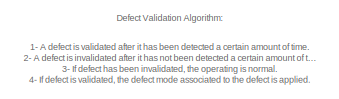
[diagram: root canvas - part 1/2, top left region]
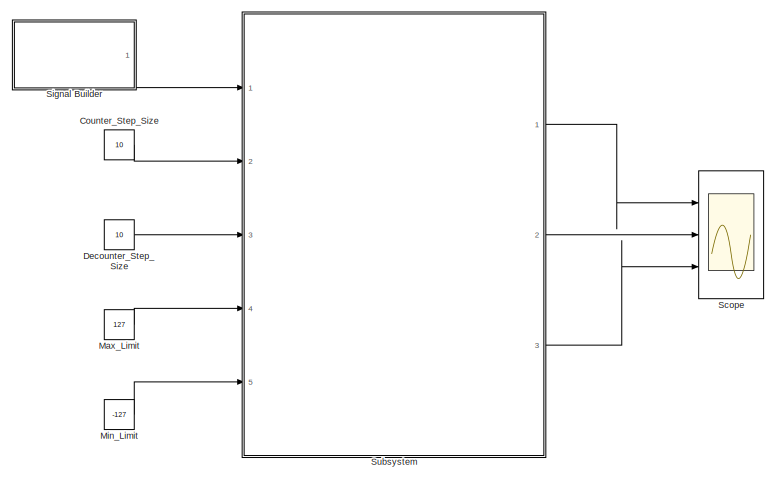
[diagram: root canvas - part 2/2, bottom right region]
MODEL slx_62a471bb2615
KIND model
CONFIG AbsTol = auto
CONFIG EnableMultiTasking = off
CONFIG FixedStep = auto
CONFIG MaxStep = auto
CONFIG MinStep = auto
CONFIG RelTol = 1e-3
CONFIG SampleTimeConstraint = Unconstrained
CONFIG SolverName = VariableStepAuto
CONFIG StartTime = 0.0
CONFIG StopTime = 10.0
BLOCK [Constant] Counter_Step_Size
  Value = 10
BLOCK [Constant] Decounter_Step_Size
  Value = 10
BLOCK [Constant] Max_Limit
  Value = 127
BLOCK [Constant] Min_Limit
  Value = -127
BLOCK [Scope] Scope
  Floating = off
  NumInputPorts = 3
  Ports = [3]
  ScopeSpecificationString = Simulink.scopes.TimeScopeBlockCfg('CurrentConfiguration', extmgr.ConfigurationSet(extmgr.Configuration('Core','General UI',true),extmgr.Configuration('Core','Source UI',true),extmgr.Configuration('Sources','WiredSimulink',true),extmgr.Configuration('Visuals','Time Domain',true,'SerializedDisplays',{struct('MinYLimReal','-0.125','MaxYLimReal','1.125','YLabelReal','','MinYLimMag','0.00000','MaxYLimM...<+2635ch>
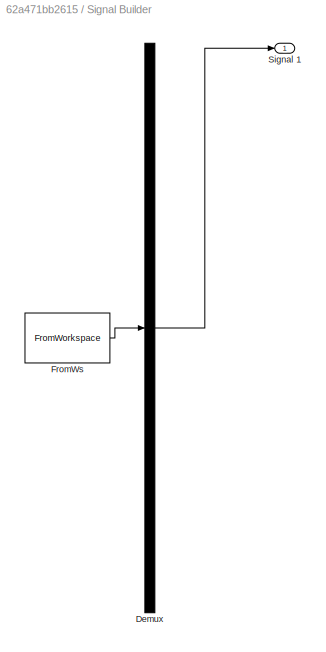
BLOCK [SubSystem] Signal Builder
  ClipboardFcn = sigbuilder_block('clipboard');
  CloseFcn = sigbuilder_block('close');
  ContinueFcn = sigbuilder_block('continue');
  CopyFcn = sigbuilder_block('copy');
  DeleteFcn = sigbuilder_block('delete');
  LoadFcn = sigbuilder_block('load');
  MaskHideContents = on
  ModelCloseFcn = sigbuilder_block('modelClose');
  NameChangeFcn = sigbuilder_block('namechange');
  OpenFcn = sigbuilder_block('open',[5.4 30 1141.2 522.6 ]);
  PauseFcn = sigbuilder_block('pause');
  Ports = [0, 1]
  PreSaveFcn = sigbuilder_block('preSave');
  RequestExecContextInheritance = off
  StartFcn = sigbuilder_block('start');
  StopFcn = sigbuilder_block('stop');
  Tag = STV Subsys
BLOCK [Demux] Signal Builder/Demux
  DisplayOption = none
  Outputs = 1
  Ports = [1, 1]
  Tag = STV Demux
BLOCK [FromWorkspace] Signal Builder/FromWs
  Tag = STV FromWs
  VariableName = tuvar
BLOCK [Outport] Signal Builder/Signal 1
  Tag = STV Outport
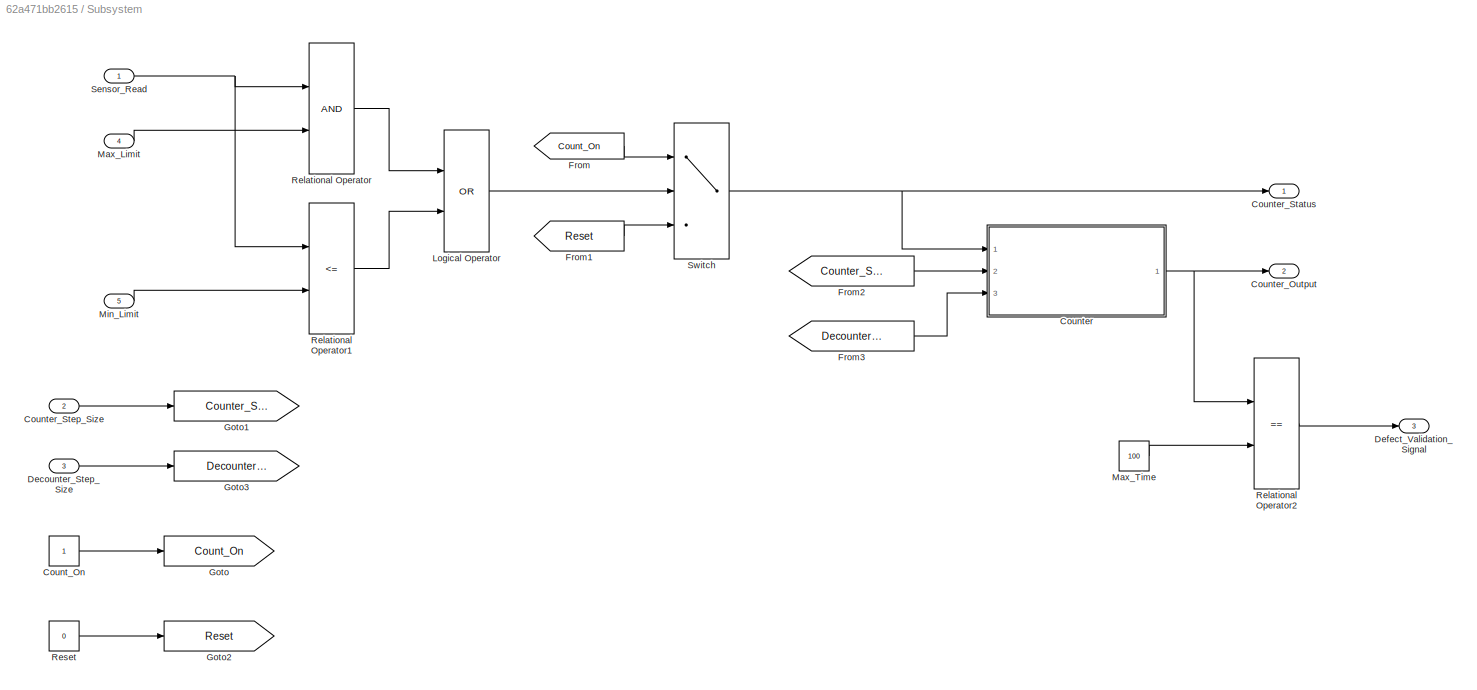
BLOCK [SubSystem] Subsystem
  Ports = [5, 3]
  RequestExecContextInheritance = off
BLOCK [Constant] Subsystem/Count_On
  OutDataTypeStr = Inherit: Inherit via back propagation
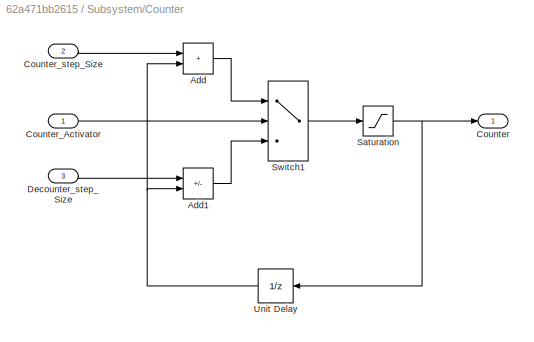
BLOCK [SubSystem] Subsystem/Counter
  Ports = [3, 1]
  RequestExecContextInheritance = off
BLOCK [Sum] Subsystem/Counter/Add
  IconShape = rectangular
  Ports = [2, 1]
BLOCK [Sum] Subsystem/Counter/Add1
  IconShape = rectangular
  Inputs = -+
  Ports = [2, 1]
BLOCK [Outport] Subsystem/Counter/Counter
BLOCK [Inport] Subsystem/Counter/Counter_Activator
BLOCK [Inport] Subsystem/Counter/Counter_step_Size
  Port = 2
BLOCK [Inport] Subsystem/Counter/Decounter_step_Size
  Port = 3
BLOCK [Saturate] Subsystem/Counter/Saturation
  LowerLimit = 0
  UpperLimit = 100
BLOCK [Switch] Subsystem/Counter/Switch1
  Criteria = u2 > Threshold
  InputSameDT = off
  SaturateOnIntegerOverflow = off
BLOCK [UnitDelay] Subsystem/Counter/Unit Delay
  HasFrameUpgradeWarning = on
  SampleTime = -1
BLOCK [Outport] Subsystem/Counter_Output
  Port = 2
BLOCK [Outport] Subsystem/Counter_Status
BLOCK [Inport] Subsystem/Counter_Step_Size
  Port = 2
BLOCK [Inport] Subsystem/Decounter_Step_Size
  Port = 3
BLOCK [Outport] Subsystem/Defect_Validation_Signal
  Port = 3
BLOCK [From] Subsystem/From
  GotoTag = Count_On
BLOCK [From] Subsystem/From1
  GotoTag = Reset
BLOCK [From] Subsystem/From2
  GotoTag = Counter_Step_Size
BLOCK [From] Subsystem/From3
  GotoTag = Decounter_Step_Size
BLOCK [Goto] Subsystem/Goto
  GotoTag = Count_On
BLOCK [Goto] Subsystem/Goto1
  GotoTag = Counter_Step_Size
BLOCK [Goto] Subsystem/Goto2
  GotoTag = Reset
BLOCK [Goto] Subsystem/Goto3
  GotoTag = Decounter_Step_Size
BLOCK [Logic] Subsystem/Logical Operator
  AllPortsSameDT = off
  Operator = OR
  OutDataTypeStr = boolean
  Ports = [2, 1]
BLOCK [Inport] Subsystem/Max_Limit
  Port = 4
BLOCK [Constant] Subsystem/Max_Time
  OutDataTypeStr = Inherit: Inherit via back propagation
  Value = 100
BLOCK [Inport] Subsystem/Min_Limit
  Port = 5
BLOCK [RelationalOperator] Subsystem/Relational Operator
  InputSameDT = off
  OutDataTypeStr = boolean
  Ports = [2, 1]
  RndMeth = Simplest
BLOCK [RelationalOperator] Subsystem/Relational Operator1
  InputSameDT = off
  Operator = <=
  OutDataTypeStr = boolean
  Ports = [2, 1]
  RndMeth = Simplest
BLOCK [RelationalOperator] Subsystem/Relational Operator2
  InputSameDT = off
  Operator = ==
  OutDataTypeStr = boolean
  Ports = [2, 1]
  RndMeth = Simplest
BLOCK [Constant] Subsystem/Reset
  OutDataTypeStr = Inherit: Inherit via back propagation
  Value = 0
BLOCK [Inport] Subsystem/Sensor_Read
BLOCK [Switch] Subsystem/Switch
  Criteria = u2 > Threshold
  InputSameDT = off
  SaturateOnIntegerOverflow = off
ANNOTATION (root): 1- A defect is validated after it has been detected a certain amount of time. 2- A defect is invalidated after it has not been detected a certain amount of time. 3- If defect has been invalidated, the operating is normal. 4- If defect is validated, the defect mode associated to the defect is applied.
ANNOTATION (root): Defect Validation Algorithm:
LINE Counter_Step_Size:1 -> Subsystem:2
LINE Decounter_Step_Size:1 -> Subsystem:3
LINE Max_Limit:1 -> Subsystem:4
LINE Min_Limit:1 -> Subsystem:5
LINE Signal Builder:1 -> Subsystem:1
LINE Subsystem/Count_On:1 -> Subsystem/Goto:1
LINE Subsystem/Counter/Add1:1 -> Subsystem/Counter/Switch1:3
LINE Subsystem/Counter/Add:1 -> Subsystem/Counter/Switch1:1
LINE Subsystem/Counter/Counter_Activator:1 -> Subsystem/Counter/Switch1:2
LINE Subsystem/Counter/Counter_step_Size:1 -> Subsystem/Counter/Add:1
LINE Subsystem/Counter/Decounter_step_Size:1 -> Subsystem/Counter/Add1:1
NET Subsystem/Counter/Saturation:1 -> Subsystem/Counter/Counter:1, Subsystem/Counter/Unit Delay:1
LINE Subsystem/Counter/Switch1:1 -> Subsystem/Counter/Saturation:1
NET Subsystem/Counter/Unit Delay:1 -> Subsystem/Counter/Add1:2, Subsystem/Counter/Add:2
NET Subsystem/Counter:1 -> Subsystem/Counter_Output:1, Subsystem/Relational Operator2:1
LINE Subsystem/Counter_Step_Size:1 -> Subsystem/Goto1:1
LINE Subsystem/Decounter_Step_Size:1 -> Subsystem/Goto3:1
LINE Subsystem/From1:1 -> Subsystem/Switch:3
LINE Subsystem/From2:1 -> Subsystem/Counter:2
LINE Subsystem/From3:1 -> Subsystem/Counter:3
LINE Subsystem/From:1 -> Subsystem/Switch:1
LINE Subsystem/Logical Operator:1 -> Subsystem/Switch:2
LINE Subsystem/Max_Limit:1 -> Subsystem/Relational Operator:2
LINE Subsystem/Max_Time:1 -> Subsystem/Relational Operator2:2
LINE Subsystem/Min_Limit:1 -> Subsystem/Relational Operator1:2
LINE Subsystem/Relational Operator1:1 -> Subsystem/Logical Operator:2
LINE Subsystem/Relational Operator2:1 -> Subsystem/Defect_Validation_Signal:1
LINE Subsystem/Relational Operator:1 -> Subsystem/Logical Operator:1
LINE Subsystem/Reset:1 -> Subsystem/Goto2:1
NET Subsystem/Sensor_Read:1 -> Subsystem/Relational Operator1:1, Subsystem/Relational Operator:1
NET Subsystem/Switch:1 -> Subsystem/Counter:1, Subsystem/Counter_Status:1
LINE Subsystem:1 -> Scope:1
LINE Subsystem:2 -> Scope:2
LINE Subsystem:3 -> Scope:3
note: NET lines group one-source signal fan-out (src -> all destinations, sorted); 1:1 wires keep LINE
